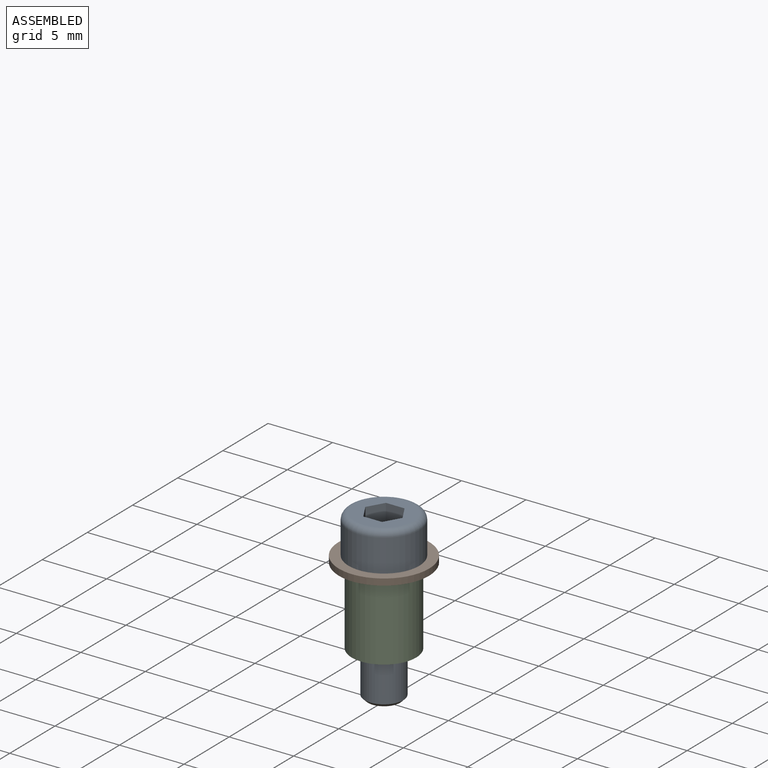
[diagram: assembled view]
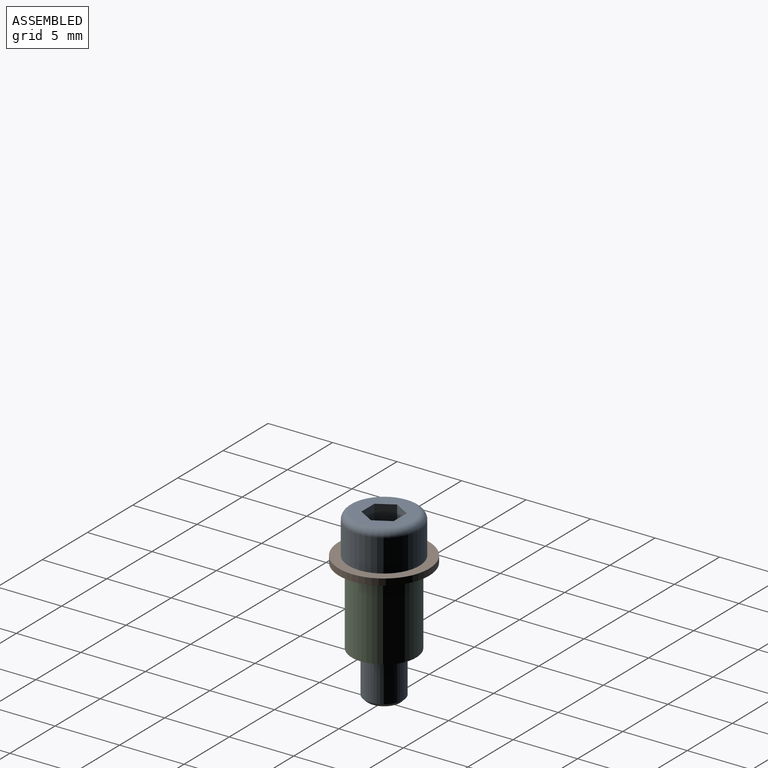
[diagram: assembled view, second angle]
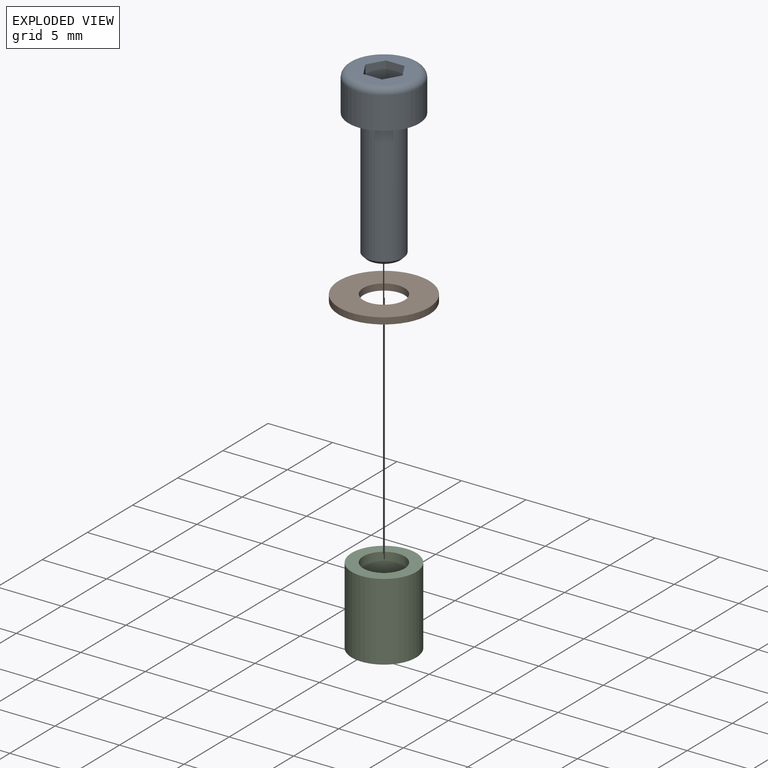
[diagram: exploded view]
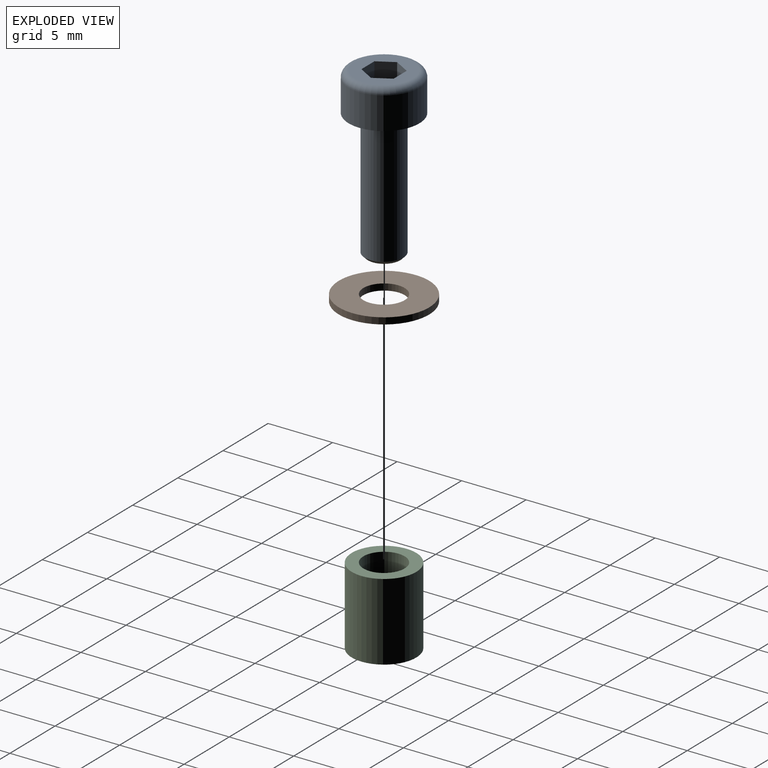
[diagram: exploded view, second angle]
ASSEMBLY  parts=3 mates=2
PART A: 14 faces, bbox 6x6x13 mm
  f0: cylinder r=1.5mm len=9.75mm, axis (0,0,1), area 91.9mm2, adj f4,f13
  f1: plane 2.5x2.5mm, normal (0,0,-1), area 4.9mm2, adj f13
  f2: plane 4.5x4.5mm, normal (0,0,1), area 10.5mm2, adj f5,f6,f7,f8,f9,f10,f12
  f3: cylinder r=2.75mm len=5.5mm, axis (0,0,1), area 43.2mm2, adj f4,f12
  f4: plane 5.5x5.5mm, normal (0,0,-1), area 16.7mm2, adj f0,f3
  f5: plane 2x1.25mm, normal (-0.87,-0.5,0), area 2.9mm2, adj f2,f6,f10,f11
  f6: plane 2x1.44mm, normal (0,-1,0), area 2.9mm2, adj f2,f5,f7,f11
  f7: plane 2x1.25mm, normal (0.87,-0.5,0), area 2.9mm2, adj f2,f6,f8,f11
  f8: plane 2x1.25mm, normal (0.87,0.5,0), area 2.9mm2, adj f2,f7,f9,f11
  f9: plane 2x1.44mm, normal (0,1,0), area 2.9mm2, adj f2,f8,f10,f11
  f10: plane 2x1.25mm, normal (-0.87,0.5,0), area 2.9mm2, adj f2,f5,f9,f11
  f11: plane 2.89x2.5mm, normal (0,0,1), area 5.4mm2, adj f5,f6,f7,f8,f9,f10
  f12: torus R=2.25mm, axis (0,0,-1), area 12.7mm2, adj f2,f3
  f13: cone r=1.5mm half-angle=45deg, axis (0,0,1), area 3.1mm2, adj f0,f1
PART B: 4 faces, bbox 7x7x0.5 mm
  f0: cylinder r=1.6mm len=3.2mm, axis (0,0,-1), area 5mm2, adj f2,f3
  f1: cylinder r=3.5mm len=7mm, axis (0,0,-1), area 11mm2, adj f2,f3
  f2: plane 7x7mm, normal (0,0,1), area 30.4mm2, adj f0,f1
  f3: plane 7x7mm, normal (0,0,-1), area 30.4mm2, adj f0,f1
PART C: 4 faces, bbox 5x5x6 mm
  f0: cylinder r=1.6mm len=6mm, axis (0,0,-1), area 60.3mm2, adj f2,f3
  f1: cylinder r=2.5mm len=6mm, axis (0,0,-1), area 94.2mm2, adj f2,f3
  f2: plane 5x5mm, normal (0,0,1), area 11.6mm2, adj f0,f1
  f3: plane 5x5mm, normal (0,0,-1), area 11.6mm2, adj f0,f1
PLACE A at identity
PLACE B t=(0,0,-0.5)mm
PLACE C t=(0,0,-3.5)mm
MATE fastened C.f1 <-> B.f1  axis (0,0,1) through (0,0,-0.5)mm
MATE fastened B.f0 <-> A.f0  axis (0,0,1) through (0,0,0)mm
